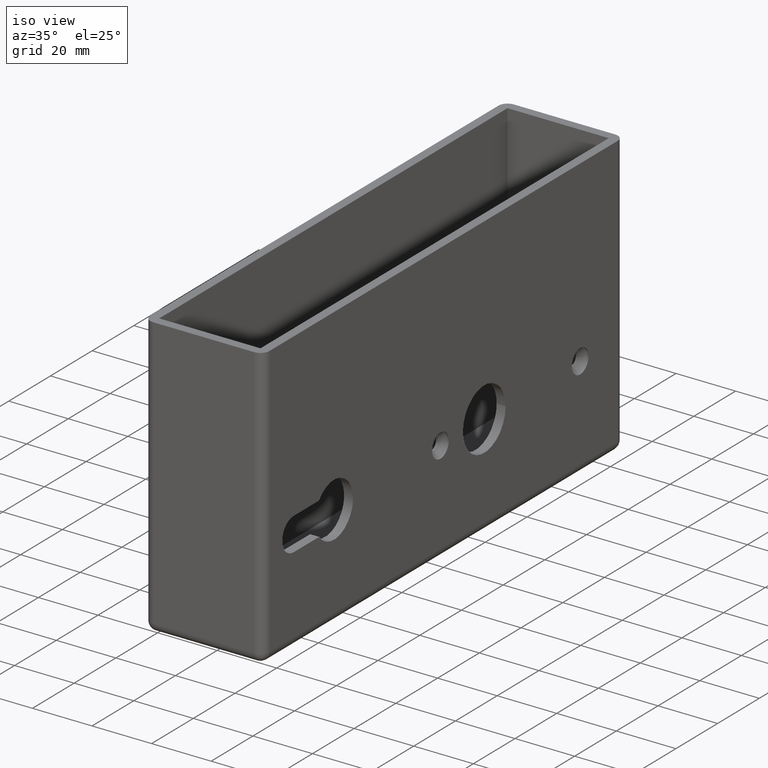
[diagram: clean part render]
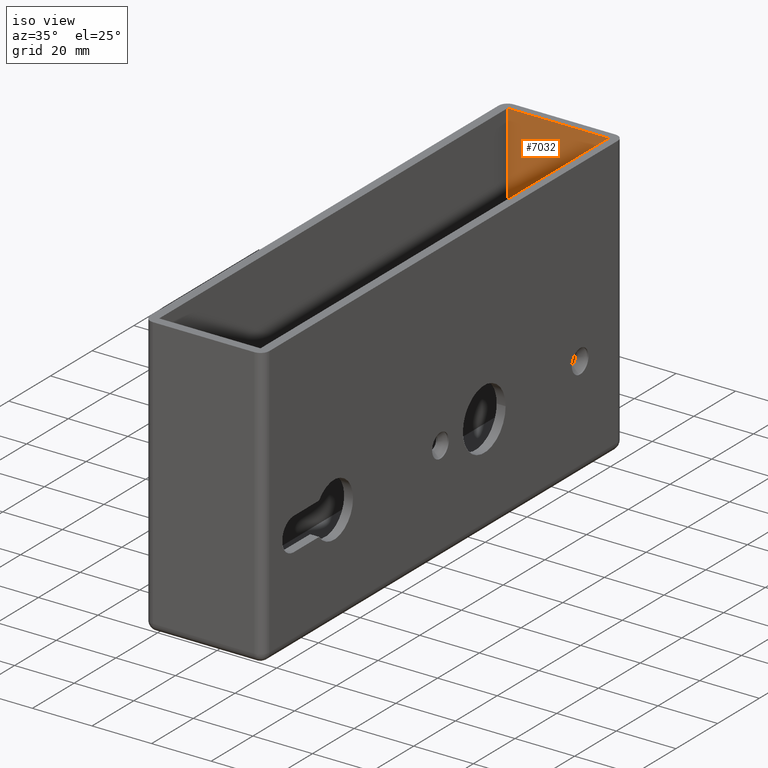
[diagram: same view with one face highlighted and labeled with its STEP entity id]
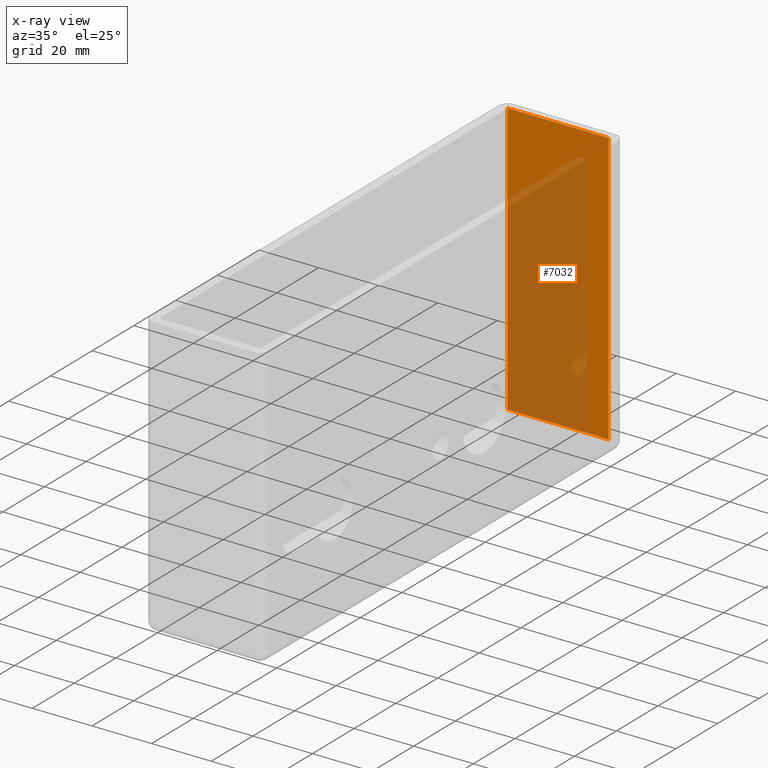
[diagram: x-ray of the same camera — body ghosted, the highlighted face saturated]
A machine part, iso view. The second image highlights one B-rep face of the part: STEP entity #7032.
The next image is the same camera in x-ray: the body ghosted, the highlighted face saturated — about 65% of this face is hidden behind the body in this view.
In plain terms, the highlighted planar face has unit normal (0, -1, 0).
Its self-contained STEP definition (entity closure, byte-faithful):
#736 = VERTEX_POINT ( 'NONE', #9747 ) ;
#939 = DIRECTION ( 'NONE',  ( -1.000000000000000000, 0.000000000000000000, 0.000000000000000000 ) ) ;
#2236 = ORIENTED_EDGE ( 'NONE', *, *, #11613, .F. ) ;
#2325 = LINE ( 'NONE', #4897, #8095 ) ;
#3400 = DIRECTION ( 'NONE',  ( 0.000000000000000000, 0.000000000000000000, 1.000000000000000000 ) ) ;
#3887 = AXIS2_PLACEMENT_3D ( 'NONE', #6163, #13174, #8057 ) ;
#4897 = CARTESIAN_POINT ( 'NONE',  ( -17.00000000000000355, 83.50000000000000000, 47.25000000000000000 ) ) ;
#5054 = LINE ( 'NONE', #5529, #6643 ) ;
#5529 = CARTESIAN_POINT ( 'NONE',  ( -20.00000000000000355, 83.50000000000000000, -44.25000000000000000 ) ) ;
#5673 = EDGE_CURVE ( 'NONE', #736, #12546, #6160, .T. ) ;
#6094 = ORIENTED_EDGE ( 'NONE', *, *, #7018, .T. ) ;
#6110 = ORIENTED_EDGE ( 'NONE', *, *, #10828, .F. ) ;
#6150 = FACE_OUTER_BOUND ( 'NONE', #10864, .T. ) ;
#6160 = LINE ( 'NONE', #9549, #12210 ) ;
#6163 = CARTESIAN_POINT ( 'NONE',  ( -20.00000000000000355, 83.50000000000000000, 47.25000000000000000 ) ) ;
#6398 = VERTEX_POINT ( 'NONE', #12089 ) ;
#6643 = VECTOR ( 'NONE', #12615, 1000.000000000000000 ) ;
#7018 = EDGE_CURVE ( 'NONE', #12546, #6398, #8027, .T. ) ;
#7032 = ADVANCED_FACE ( 'NONE', ( #6150 ), #12127, .T. ) ;
#7044 = CARTESIAN_POINT ( 'NONE',  ( -20.00000000000000355, 83.50000000000000000, 47.25000000000000000 ) ) ;
#7811 = CARTESIAN_POINT ( 'NONE',  ( 16.99999999999999289, 83.50000000000000000, 47.25000000000000000 ) ) ;
#8027 = LINE ( 'NONE', #7044, #8658 ) ;
#8057 = DIRECTION ( 'NONE',  ( 0.000000000000000000, -0.000000000000000000, -1.000000000000000000 ) ) ;
#8095 = VECTOR ( 'NONE', #10046, 1000.000000000000000 ) ;
#8284 = VERTEX_POINT ( 'NONE', #11436 ) ;
#8658 = VECTOR ( 'NONE', #939, 1000.000000000000000 ) ;
#9549 = CARTESIAN_POINT ( 'NONE',  ( 16.99999999999999289, 83.50000000000000000, 47.25000000000000000 ) ) ;
#9747 = CARTESIAN_POINT ( 'NONE',  ( 16.99999999999999289, 83.50000000000000000, -44.25000000000000000 ) ) ;
#10046 = DIRECTION ( 'NONE',  ( 0.000000000000000000, 0.000000000000000000, 1.000000000000000000 ) ) ;
#10828 = EDGE_CURVE ( 'NONE', #8284, #6398, #2325, .T. ) ;
#10864 = EDGE_LOOP ( 'NONE', ( #2236, #12517, #6094, #6110 ) ) ;
#11436 = CARTESIAN_POINT ( 'NONE',  ( -17.00000000000000355, 83.50000000000000000, -44.25000000000000000 ) ) ;
#11613 = EDGE_CURVE ( 'NONE', #736, #8284, #5054, .T. ) ;
#12089 = CARTESIAN_POINT ( 'NONE',  ( -17.00000000000000355, 83.50000000000000000, 47.25000000000000000 ) ) ;
#12127 = PLANE ( 'NONE',  #3887 ) ;
#12210 = VECTOR ( 'NONE', #3400, 1000.000000000000000 ) ;
#12517 = ORIENTED_EDGE ( 'NONE', *, *, #5673, .T. ) ;
#12546 = VERTEX_POINT ( 'NONE', #7811 ) ;
#12615 = DIRECTION ( 'NONE',  ( -1.000000000000000000, 0.000000000000000000, 0.000000000000000000 ) ) ;
#13174 = DIRECTION ( 'NONE',  ( 0.000000000000000000, -1.000000000000000000, 0.000000000000000000 ) ) ;